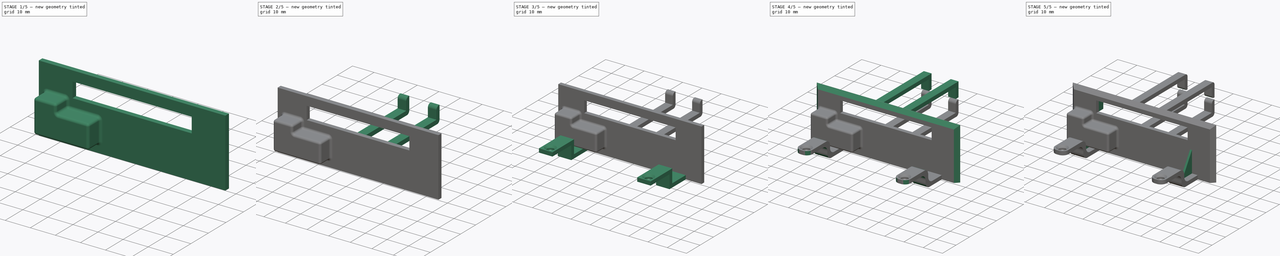
[diagram: build sequence overview — one tinted view per stage of 5, left to right]
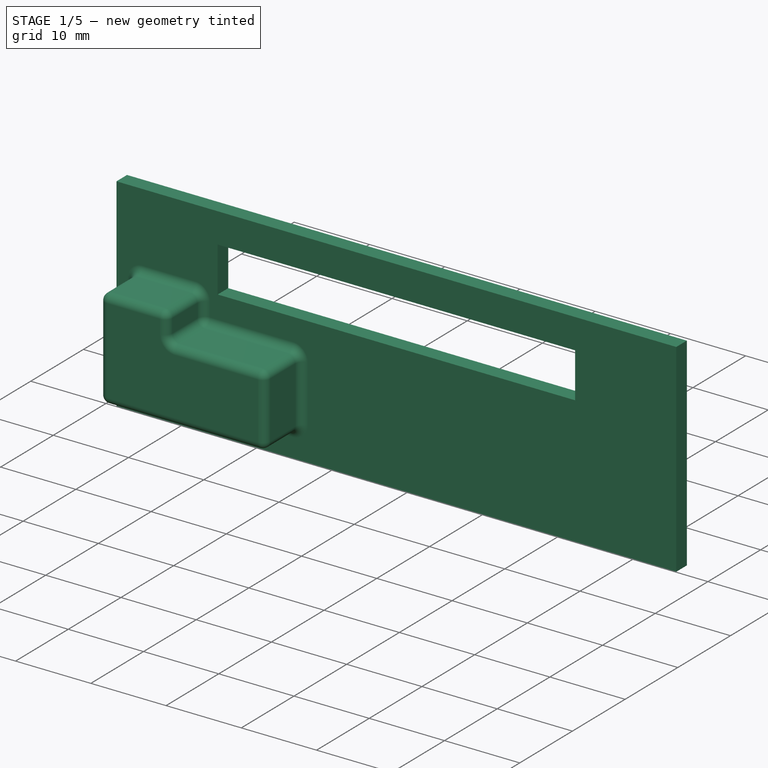
[diagram: stage 1 of 5 — iso view after this stage's code; geometry added in this stage tinted green]
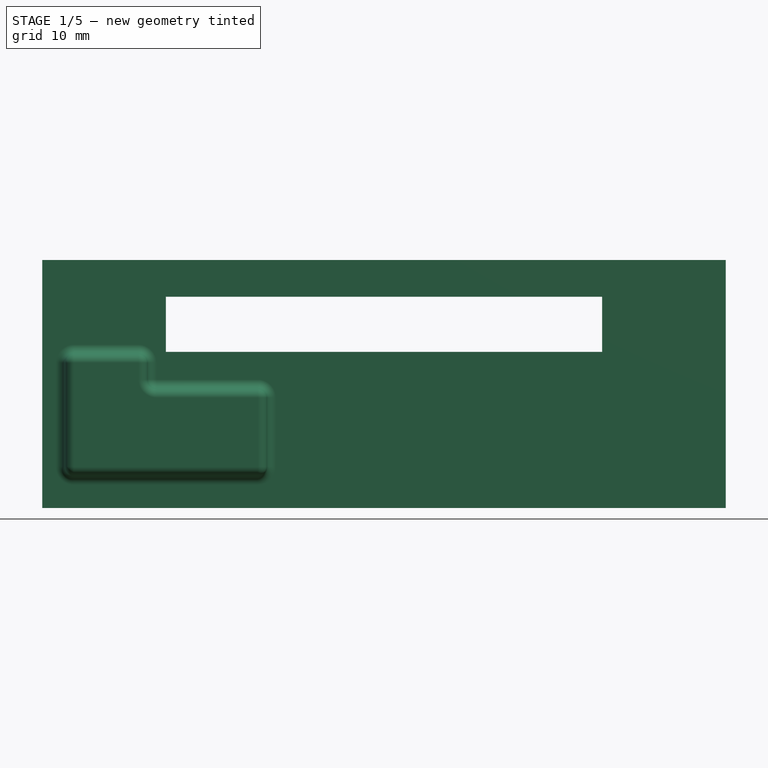
[diagram: stage 1 of 5 — front view after this stage's code; geometry added in this stage tinted green]
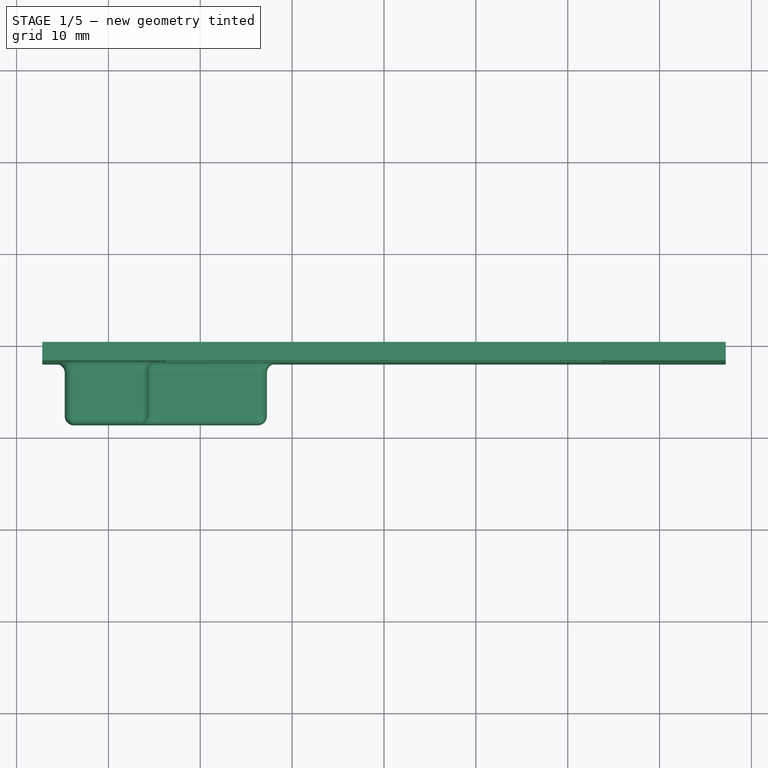
[diagram: stage 1 of 5 — top view after this stage's code; geometry added in this stage tinted green]
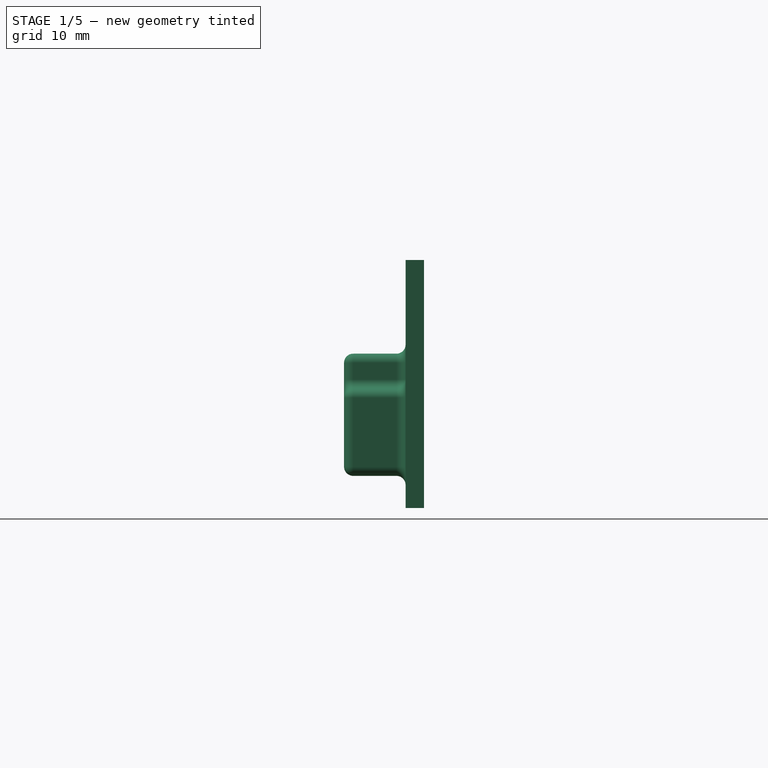
[diagram: stage 1 of 5 — right view after this stage's code; geometry added in this stage tinted green]
FCSTD DOCUMENT  (FreeCAD 0.20R29603 (Git))
Label: Encaixe (PLANTOWER)
License: All rights reserved
LicenseURL: http://en.wikipedia.org/wiki/All_rights_reserved
objects: Sketcher::SketchObject×15, PartDesign::Pad×13, PartDesign::Fillet×6, PartDesign::Pocket×2, PartDesign::Chamfer×2, PartDesign::Body×1
note: 62 computed .brp shape members not serialized (recipe doc carries the construction recipe); baked Part::Feature solids carry a one-line shape summary decoded from their .brp

FEATURE [Sketcher::SketchObject] Sketch
  FullyConstrained = true
  MapMode = 5
  Placement = pos=(0,0,0) rot=(1,0,0;1.5708rad)
  Support = -> [XZ_Plane]
  sketch-geometry (18):
    g0: LineSegment StartX=37.2 StartY=-13.5 StartZ=0 EndX=37.2 EndY=13.5 EndZ=0
    g1: LineSegment StartX=37.2 StartY=13.5 StartZ=0 EndX=-37.2 EndY=13.5 EndZ=0
    g2: LineSegment StartX=-37.2 StartY=13.5 StartZ=0 EndX=-37.2 EndY=-13.5 EndZ=0
    g3: LineSegment StartX=-37.2 StartY=-13.5 StartZ=0 EndX=37.2 EndY=-13.5 EndZ=0
    g4: GeomPoint X=0 Y=0 Z=0
    g5: LineSegment StartX=-23.75 StartY=-2.5 StartZ=0 EndX=-23.75 EndY=9.5 EndZ=0
    g6: LineSegment StartX=-23.75 StartY=9.5 StartZ=0 EndX=23.75 EndY=9.5 EndZ=0
    g7: LineSegment StartX=23.75 StartY=9.5 StartZ=0 EndX=23.75 EndY=-2.5 EndZ=0
    g8: LineSegment StartX=23.75 StartY=-2.5 StartZ=0 EndX=-23.75 EndY=-2.5 EndZ=0
    g9: GeomPoint X=0 Y=3.5 Z=0
    g10: LineSegment StartX=-23.75 StartY=-2.5 StartZ=0 EndX=23.75 EndY=-2.5 EndZ=0
    g11: LineSegment StartX=23.75 StartY=-2.5 StartZ=0 EndX=23.75 EndY=3.5 EndZ=0
    g12: LineSegment StartX=23.75 StartY=3.5 StartZ=0 EndX=-23.75 EndY=3.5 EndZ=0
    g13: LineSegment StartX=-23.75 StartY=3.5 StartZ=0 EndX=-23.75 EndY=-2.5 EndZ=0
    g14: LineSegment StartX=-23.75 StartY=9.5 StartZ=0 EndX=23.75 EndY=9.5 EndZ=0
    g15: LineSegment StartX=23.75 StartY=9.5 StartZ=0 EndX=23.75 EndY=3.5 EndZ=0
    g16: LineSegment StartX=23.75 StartY=3.5 StartZ=0 EndX=-23.75 EndY=3.5 EndZ=0
    g17: LineSegment StartX=-23.75 StartY=3.5 StartZ=0 EndX=-23.75 EndY=9.5 EndZ=0
  constraints (46):
    c: Coincident(g0,g1)
    c: Coincident(g1,g2)
    c: Coincident(g2,g3)
    c: Coincident(g3,g0)
    c: Horizontal(g1)
    c: Horizontal(g3)
    c: Vertical(g0)
    c: Vertical(g2)
    c: Symmetric(g1,g0,g4)
    c: Coincident(g4,g-1)
    c: DistanceX(g1,g1) = 74.4
    c: DistanceY(g2,g2) = 27
    c: Coincident(g5,g6)
    c: Coincident(g6,g7)
    c: Coincident(g7,g8)
    c: Coincident(g8,g5)
    c: Horizontal(g6)
    c: Horizontal(g8)
    c: Vertical(g5)
    c: Vertical(g7)
    c: Symmetric(g6,g5,g9)
    c: PointOnObject(g9,g-2)
    c: DistanceX(g6,g6) = 47.5
    c: DistanceY(g7,g7) = 12
    c: DistanceY(g0,g7) = 11
    c: Coincident(g10,g11)
    c: Coincident(g11,g12)
    c: Coincident(g12,g13)
    c: Coincident(g13,g10)
    c: Horizontal(g10)
    c: Horizontal(g12)
    c: Vertical(g11)
    c: Vertical(g13)
    c: Coincident(g10,g5)
    c: PointOnObject(g11,g7)
    c: PointOnObject(g9,g12)
    c: Coincident(g14,g15)
    c: Coincident(g15,g16)
    c: Coincident(g16,g17)
    c: Coincident(g17,g14)
    c: Horizontal(g14)
    c: Horizontal(g16)
    c: Vertical(g15)
    c: Vertical(g17)
    c: Coincident(g14,g5)
    c: Coincident(g15,g11)
FEATURE [PartDesign::Pad] Pad
  Direction = (0,-1,-2e-16)
  Length = 2
  Length2 = 10
  Placement = pos=(0,0,0) rot=(1,0,0;1.5708rad)
  Profile = -> Sketch
  ReferenceAxis = -> Sketch [N_Axis]
  Type = 0
FEATURE [Sketcher::SketchObject] Sketch001
  ExternalGeometry = -> [Pad]
  FullyConstrained = true
  MapMode = 5
  Placement = pos=(0,0,0) rot=(-1,0,0;1.5708rad)
  Support = -> [Pad]
  sketch-geometry (6):
    g0: LineSegment StartX=-33.75 StartY=-2.3 StartZ=0 EndX=-33.75 EndY=9 EndZ=0
    g1: LineSegment StartX=-33.75 StartY=9 StartZ=0 EndX=-13.75 EndY=9 EndZ=0
    g2: LineSegment StartX=-13.75 StartY=9 StartZ=0 EndX=-13.75 EndY=1.5 EndZ=0
    g3: LineSegment StartX=-13.75 StartY=1.5 StartZ=0 EndX=-26.75 EndY=1.5 EndZ=0
    g4: LineSegment StartX=-26.75 StartY=1.5 StartZ=0 EndX=-26.75 EndY=-2.3 EndZ=0
    g5: LineSegment StartX=-26.75 StartY=-2.3 StartZ=0 EndX=-33.75 EndY=-2.3 EndZ=0
  constraints (18):
    c: Coincident(g0,g1)
    c: Coincident(g1,g2)
    c: Horizontal(g1)
    c: Vertical(g0)
    c: Vertical(g2)
    c: DistanceY(g-3,g2) = 5
    c: DistanceX(g-3,g2) = 10
    c: Horizontal(g3)
    c: Coincident(g3,g4)
    c: Vertical(g4)
    c: Coincident(g4,g5)
    c: Horizontal(g5)
    c: Coincident(g3,g2)
    c: Coincident(g5,g0)
    c: DistanceX(g4,g-3) = 3
    c: DistanceY(g4,g4) = 3.8
    c: DistanceX(g1,g1) = 20
    c: DistanceY(g2,g2) = 7.5
FEATURE [PartDesign::Pocket] Pocket
  BaseFeature = -> Pad
  Direction = (0,-1,-2e-16)
  Length = 5
  Length2 = 5
  Placement = pos=(0,0,0) rot=(1,0,0;1.5708rad)
  Profile = -> Sketch001
  ReferenceAxis = -> Sketch001 [N_Axis]
  Type = 0
FEATURE [Sketcher::SketchObject] Sketch002
  ExternalGeometry = -> [Pocket]
  FullyConstrained = true
  MapMode = 5
  Placement = pos=(0,-2,0) rot=(1,0,0;1.5708rad)
  Support = -> [Pocket]
  sketch-geometry (12):
    g0: LineSegment StartX=-33.75 StartY=2.3 StartZ=0 EndX=-26.75 EndY=2.3 EndZ=0
    g1: LineSegment StartX=-26.75 StartY=2.3 StartZ=0 EndX=-26.75 EndY=-1.5 EndZ=0
    g2: LineSegment StartX=-26.75 StartY=-1.5 StartZ=0 EndX=-13.75 EndY=-1.5 EndZ=0
    g3: LineSegment StartX=-13.75 StartY=-1.5 StartZ=0 EndX=-13.75 EndY=-9 EndZ=0
    g4: LineSegment StartX=-13.75 StartY=-9 StartZ=0 EndX=-33.75 EndY=-9 EndZ=0
    g5: LineSegment StartX=-33.75 StartY=-9 StartZ=0 EndX=-33.75 EndY=2.3 EndZ=0
    g6: LineSegment StartX=-34.75 StartY=3.3 StartZ=0 EndX=-25.75 EndY=3.3 EndZ=0
    g7: LineSegment StartX=-25.75 StartY=3.3 StartZ=0 EndX=-25.75 EndY=-0.5 EndZ=0
    g8: LineSegment StartX=-25.75 StartY=-0.5 StartZ=0 EndX=-12.75 EndY=-0.5 EndZ=0
    g9: LineSegment StartX=-12.75 StartY=-0.5 StartZ=0 EndX=-12.75 EndY=-10 EndZ=0
    g10: LineSegment StartX=-12.75 StartY=-10 StartZ=0 EndX=-34.75 EndY=-10 EndZ=0
    g11: LineSegment StartX=-34.75 StartY=-10 StartZ=0 EndX=-34.75 EndY=3.3 EndZ=0
  constraints (30):
    c: Coincident(g-3,g0)
    c: Coincident(g0,g-3)
    c: Coincident(g0,g1)
    c: Coincident(g1,g-4)
    c: Coincident(g1,g2)
    c: Coincident(g2,g-4)
    c: Coincident(g2,g3)
    c: Coincident(g3,g-5)
    c: Coincident(g3,g4)
    c: Coincident(g4,g-5)
    c: Coincident(g4,g5)
    c: Coincident(g5,g0)
    c: Horizontal(g6)
    c: Coincident(g6,g7)
    c: Vertical(g7)
    c: Coincident(g7,g8)
    c: Horizontal(g8)
    c: Coincident(g8,g9)
    c: Vertical(g9)
    c: Coincident(g9,g10)
    c: Horizontal(g10)
    c: Coincident(g10,g11)
    c: Coincident(g11,g6)
    c: Vertical(g11)
    c: DistanceX(g0,g6) = 1
    c: DistanceY(g0,g6) = 1
    c: DistanceY(g2,g8) = 1
    c: DistanceX(g3,g9) = 1
    c: DistanceY(g10,g4) = 1
    c: DistanceX(g6,g0) = 1
FEATURE [PartDesign::Pad] Pad001
  BaseFeature = -> Pocket
  Direction = (0,-1,-2e-16)
  Length = 5.7
  Length2 = 10
  Placement = pos=(0,0,0) rot=(1,0,0;1.5708rad)
  Profile = -> Sketch002
  ReferenceAxis = -> Sketch002 [N_Axis]
  Type = 0
FEATURE [Sketcher::SketchObject] Sketch003
  ExternalGeometry = -> [Pad001]
  FullyConstrained = true
  MapMode = 5
  Placement = pos=(0,-7.7,0) rot=(1,0,0;1.5708rad)
  Support = -> [Pad001]
  sketch-geometry (6):
    g0: LineSegment StartX=-34.75 StartY=3.3 StartZ=0 EndX=-34.75 EndY=-10 EndZ=0
    g1: LineSegment StartX=-34.75 StartY=-10 StartZ=0 EndX=-12.75 EndY=-10 EndZ=0
    g2: LineSegment StartX=-12.75 StartY=-10 StartZ=0 EndX=-12.75 EndY=-0.5 EndZ=0
    g3: LineSegment StartX=-12.75 StartY=-0.5 StartZ=0 EndX=-25.75 EndY=-0.5 EndZ=0
    g4: LineSegment StartX=-25.75 StartY=-0.5 StartZ=0 EndX=-25.75 EndY=3.3 EndZ=0
    g5: LineSegment StartX=-25.75 StartY=3.3 StartZ=0 EndX=-34.75 EndY=3.3 EndZ=0
  constraints (12):
    c: Coincident(g-3,g0)
    c: Coincident(g0,g-5)
    c: Coincident(g0,g1)
    c: Coincident(g1,g-5)
    c: Coincident(g1,g2)
    c: Coincident(g2,g-4)
    c: Coincident(g2,g3)
    c: Coincident(g3,g-4)
    c: Coincident(g3,g4)
    c: Coincident(g4,g-3)
    c: Coincident(g4,g5)
    c: Coincident(g5,g0)
FEATURE [PartDesign::Pad] Pad002
  BaseFeature = -> Pad001
  Direction = (0,-1,-2e-16)
  Length = 1
  Length2 = 10
  Placement = pos=(0,0,0) rot=(1,0,0;1.5708rad)
  Profile = -> Sketch003
  ReferenceAxis = -> Sketch003 [N_Axis]
  Refine = true
  Type = 0
FEATURE [PartDesign::Fillet] Fillet
  Base = -> Pad002 [Face1,Face24,Face23,Face22,Face21,Face20,Face2,Face14,Face16,Face15,Face13,Face19,Face18,Face17]
  BaseFeature = -> Pad002
  Placement = pos=(0,0,0) rot=(1,0,0;1.5708rad)
  Radius = 1
  SupportTransform = false
  UseAllEdges = false
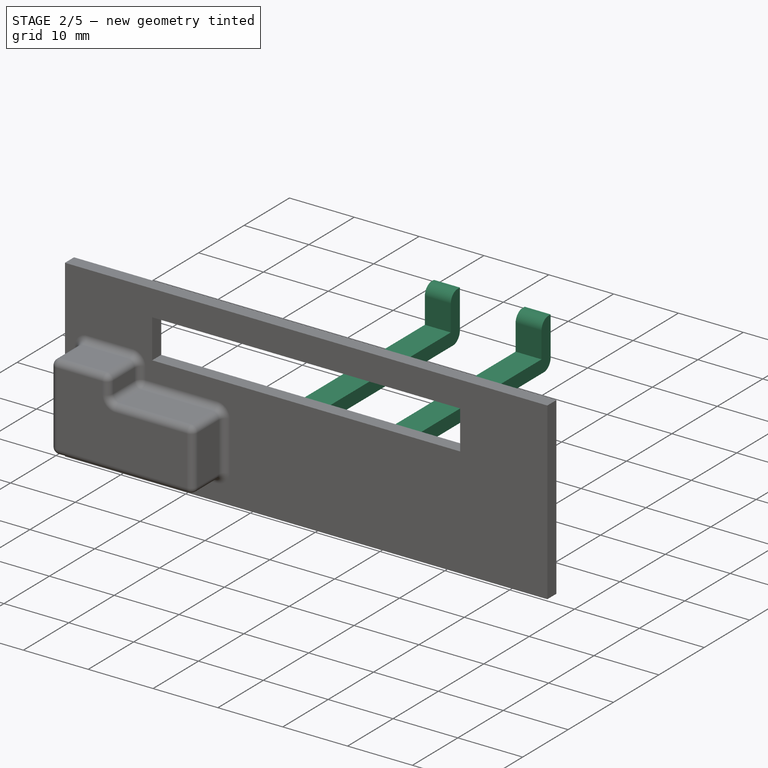
[diagram: stage 2 of 5 — iso view after this stage's code; geometry added in this stage tinted green]
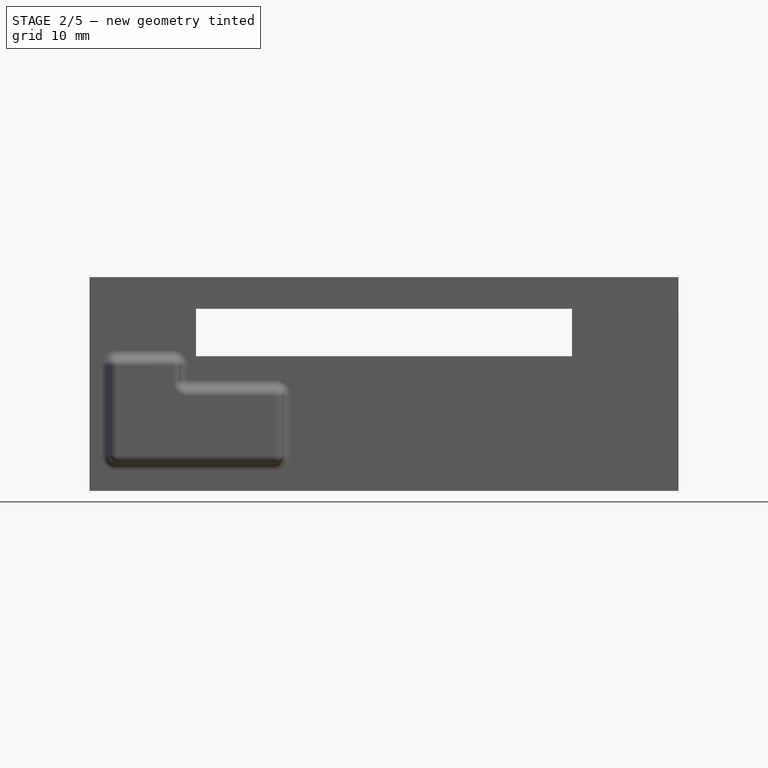
[diagram: stage 2 of 5 — front view after this stage's code; geometry added in this stage tinted green]
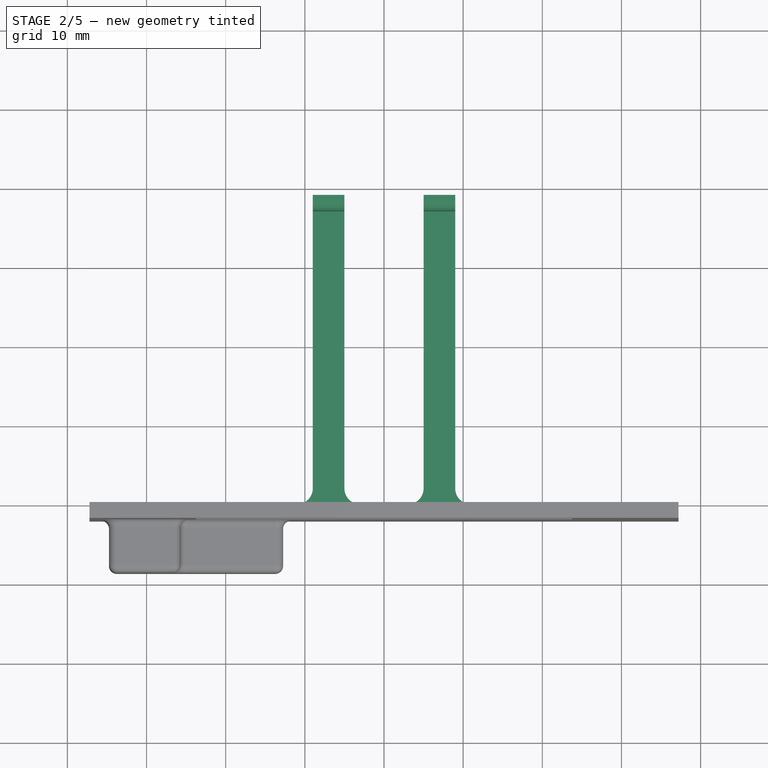
[diagram: stage 2 of 5 — top view after this stage's code; geometry added in this stage tinted green]
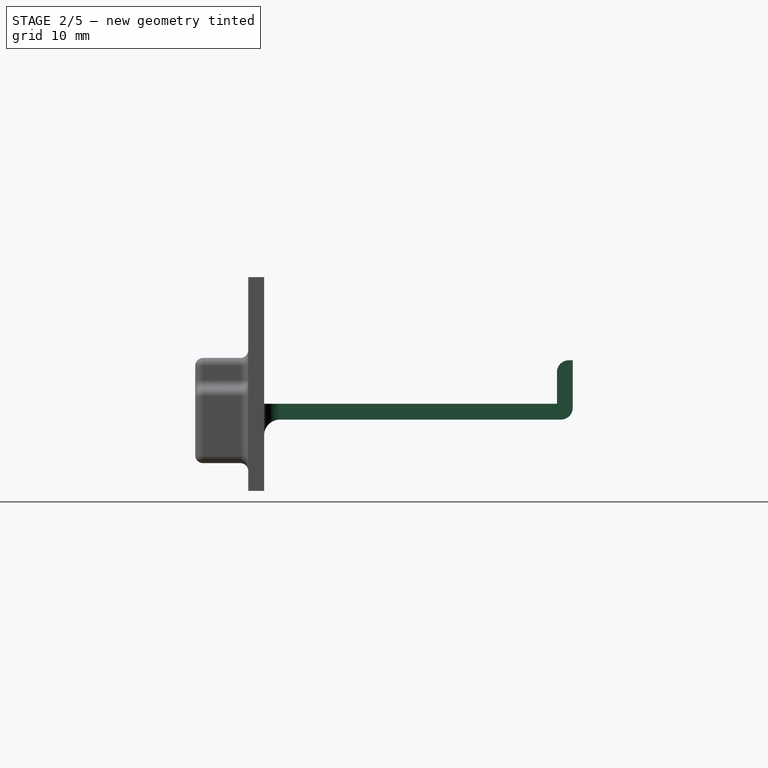
[diagram: stage 2 of 5 — right view after this stage's code; geometry added in this stage tinted green]
FEATURE [Sketcher::SketchObject] Sketch004
  ExternalGeometry = -> [Fillet]
  FullyConstrained = true
  MapMode = 5
  Placement = pos=(0,0,0) rot=(-1,0,0;1.5708rad)
  Support = -> [Fillet]
  sketch-geometry (9):
    g0: LineSegment StartX=-9 StartY=2.5 StartZ=0 EndX=-5 EndY=2.5 EndZ=0
    g1: LineSegment StartX=-5 StartY=2.5 StartZ=0 EndX=-5 EndY=4.5 EndZ=0
    g2: LineSegment StartX=-5 StartY=4.5 StartZ=0 EndX=-9 EndY=4.5 EndZ=0
    g3: LineSegment StartX=-9 StartY=4.5 StartZ=0 EndX=-9 EndY=2.5 EndZ=0
    g4: LineSegment StartX=5 StartY=2.5 StartZ=0 EndX=9 EndY=2.5 EndZ=0
    g5: LineSegment StartX=9 StartY=2.5 StartZ=0 EndX=9 EndY=4.5 EndZ=0
    g6: LineSegment StartX=9 StartY=4.5 StartZ=0 EndX=5 EndY=4.5 EndZ=0
    g7: LineSegment StartX=5 StartY=4.5 StartZ=0 EndX=5 EndY=2.5 EndZ=0
    g8: GeomPoint X=0 Y=2.5 Z=0
  constraints (25):
    c: Coincident(g0,g1)
    c: Coincident(g1,g2)
    c: Coincident(g2,g3)
    c: Coincident(g3,g0)
    c: Horizontal(g0)
    c: Horizontal(g2)
    c: Vertical(g1)
    c: Vertical(g3)
    c: Coincident(g4,g5)
    c: Coincident(g5,g6)
    c: Coincident(g6,g7)
    c: Coincident(g7,g4)
    c: Horizontal(g4)
    c: Horizontal(g6)
    c: Vertical(g5)
    c: Vertical(g7)
    c: Equal(g6,g2)
    c: Equal(g5,g1)
    c: DistanceY(g1,g1) = 2
    c: DistanceX(g2,g2) = 4
    c: DistanceX(g1,g6) = 10
    c: PointOnObject(g0,g4)
    c: DistanceY(g-4,g4) = 12
    c: PointOnObject(g8,g-2)
    c: Symmetric(g0,g4,g8)
FEATURE [PartDesign::Pad] Pad003
  BaseFeature = -> Fillet
  Direction = (0,1,2e-16)
  Length = 37
  Length2 = 10
  Placement = pos=(0,0,0) rot=(1,0,0;1.5708rad)
  Profile = -> Sketch004
  ReferenceAxis = -> Sketch004 [N_Axis]
  Type = 0
FEATURE [PartDesign::Fillet] Fillet001
  Base = -> Pad003 [Edge123,Edge122,Edge121,Edge127,Edge125,Edge126]
  BaseFeature = -> Pad003
  Placement = pos=(0,0,0) rot=(1,0,0;1.5708rad)
  Radius = 2
  SupportTransform = false
  UseAllEdges = false
FEATURE [Sketcher::SketchObject] Sketch005
  ExternalGeometry = -> [Fillet001]
  FullyConstrained = true
  MapMode = 5
  Placement = pos=(0,-6e-16,-2.5) rot=(0,0,1;3.14159rad)
  Support = -> [Fillet001]
  sketch-geometry (8):
    g0: LineSegment StartX=-9 StartY=-37 StartZ=0 EndX=-5 EndY=-37 EndZ=0
    g1: LineSegment StartX=-5 StartY=-37 StartZ=0 EndX=-5 EndY=-39 EndZ=0
    g2: LineSegment StartX=-5 StartY=-39 StartZ=0 EndX=-9 EndY=-39 EndZ=0
    g3: LineSegment StartX=-9 StartY=-39 StartZ=0 EndX=-9 EndY=-37 EndZ=0
    g4: LineSegment StartX=5 StartY=-37 StartZ=0 EndX=9 EndY=-37 EndZ=0
    g5: LineSegment StartX=9 StartY=-37 StartZ=0 EndX=9 EndY=-39 EndZ=0
    g6: LineSegment StartX=9 StartY=-39 StartZ=0 EndX=5 EndY=-39 EndZ=0
    g7: LineSegment StartX=5 StartY=-39 StartZ=0 EndX=5 EndY=-37 EndZ=0
  constraints (20):
    c: Coincident(g0,g1)
    c: Coincident(g1,g2)
    c: Coincident(g2,g3)
    c: Coincident(g3,g0)
    c: Horizontal(g2)
    c: Vertical(g1)
    c: Vertical(g3)
    c: Coincident(g0,g-4)
    c: Coincident(g4,g5)
    c: Coincident(g5,g6)
    c: Coincident(g6,g7)
    c: Coincident(g7,g4)
    c: Horizontal(g6)
    c: Vertical(g5)
    c: Vertical(g7)
    c: Coincident(g4,g-3)
    c: Coincident(g4,g-3)
    c: Coincident(g0,g-4)
    c: Equal(g1,g5)
    c: DistanceY(g1,g1) = 2
FEATURE [PartDesign::Pad] Pad004
  BaseFeature = -> Fillet001
  Direction = (0,2e-16,1)
  Length = 5.5
  Length2 = 2
  Placement = pos=(0,0,0) rot=(1,0,0;1.5708rad)
  Profile = -> Sketch005
  ReferenceAxis = -> Sketch005 [N_Axis]
  Refine = true
  Type = 4
FEATURE [PartDesign::Fillet] Fillet002
  Base = -> Pad004 [Edge88,Edge127,Edge184,Edge213]
  BaseFeature = -> Pad004
  Placement = pos=(0,0,0) rot=(1,0,0;1.5708rad)
  Radius = 1.5
  SupportTransform = false
  UseAllEdges = false
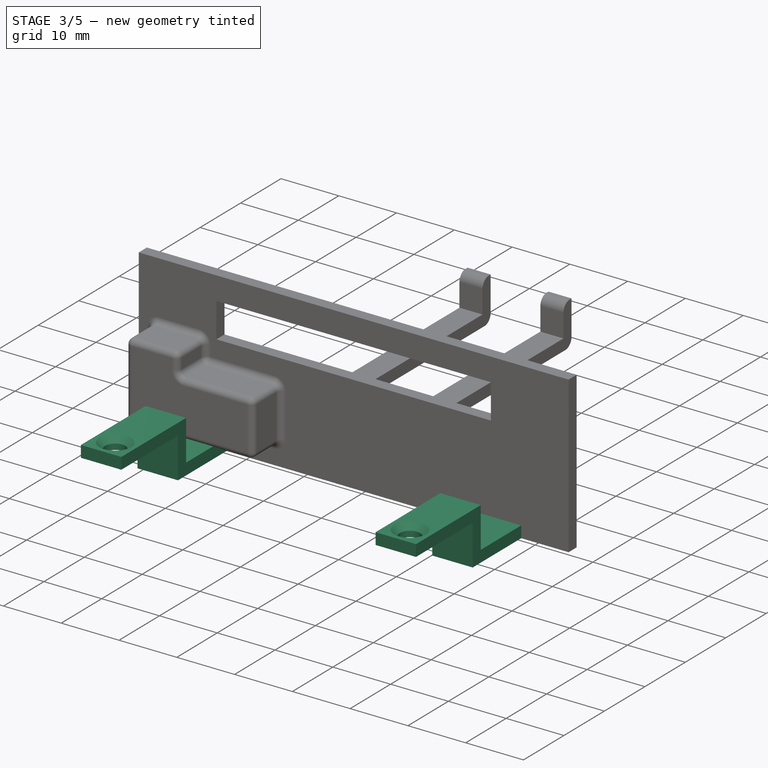
[diagram: stage 3 of 5 — iso view after this stage's code; geometry added in this stage tinted green]
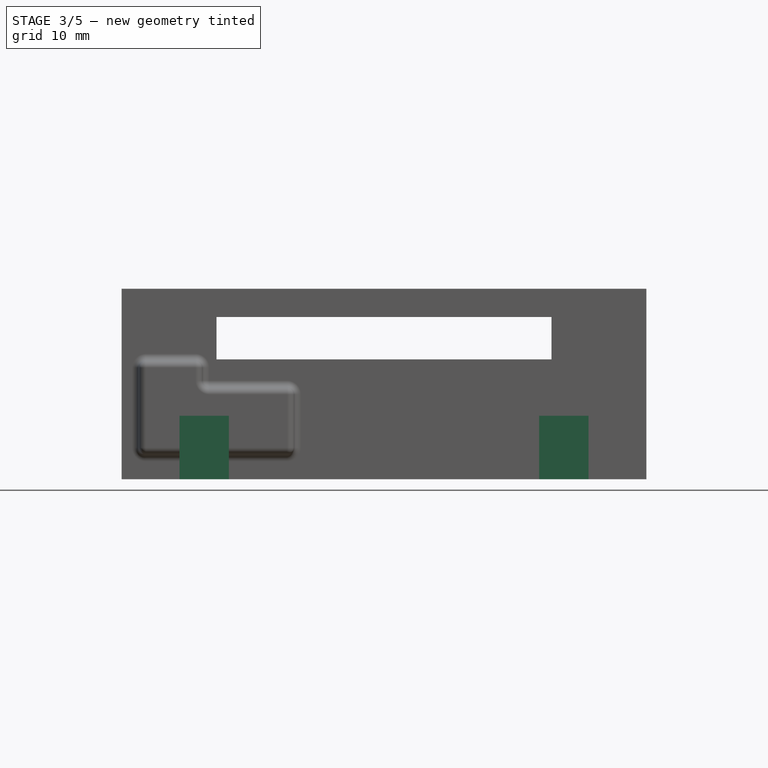
[diagram: stage 3 of 5 — front view after this stage's code; geometry added in this stage tinted green]
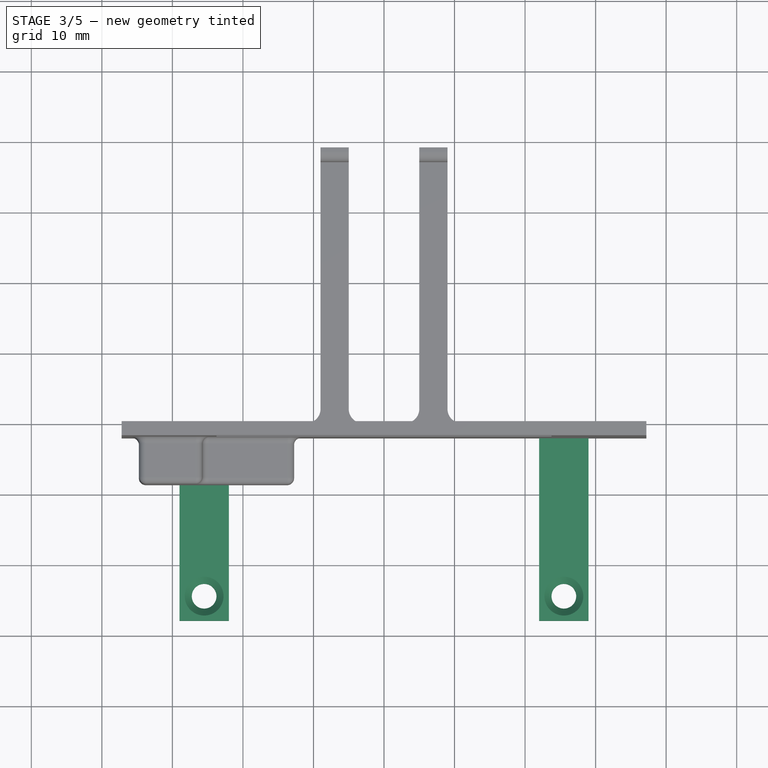
[diagram: stage 3 of 5 — top view after this stage's code; geometry added in this stage tinted green]
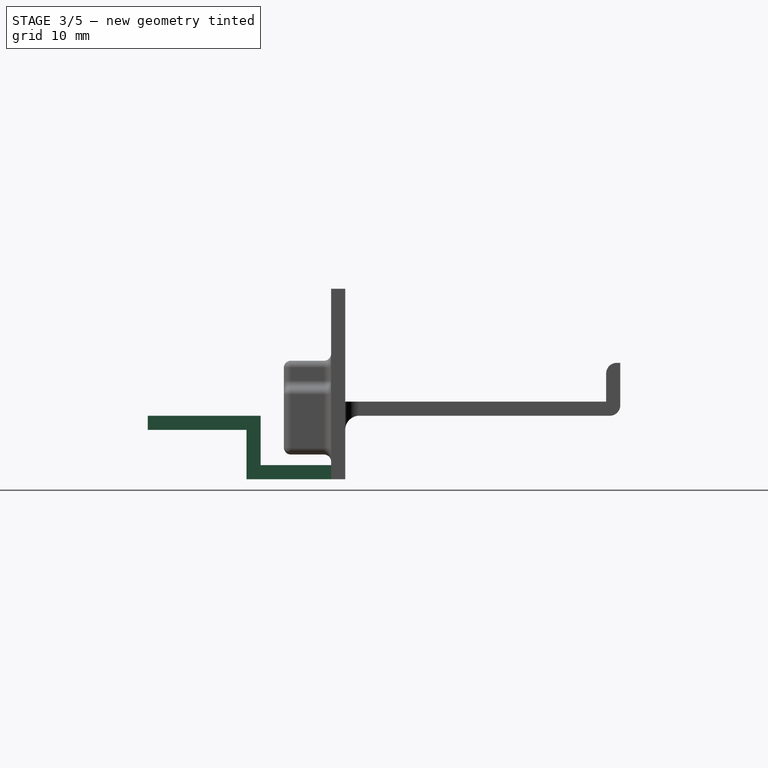
[diagram: stage 3 of 5 — right view after this stage's code; geometry added in this stage tinted green]
FEATURE [Sketcher::SketchObject] Sketch006
  ExternalGeometry = -> [Fillet002]
  FullyConstrained = true
  MapMode = 5
  Placement = pos=(0,-2,2e-16) rot=(1,0,0;1.5708rad)
  Support = -> [Fillet002]
  sketch-geometry (11):
    g0: LineSegment StartX=-29 StartY=-11.5 StartZ=0 EndX=-29 EndY=-13.5 EndZ=0
    g1: LineSegment StartX=-29 StartY=-13.5 StartZ=0 EndX=-22 EndY=-13.5 EndZ=0
    g2: LineSegment StartX=-22 StartY=-13.5 StartZ=0 EndX=-22 EndY=-11.5 EndZ=0
    g3: LineSegment StartX=-22 StartY=-11.5 StartZ=0 EndX=-29 EndY=-11.5 EndZ=0
    g4: GeomPoint X=-25.5 Y=-12.5 Z=0
    g5: LineSegment StartX=22 StartY=-11.5 StartZ=0 EndX=22 EndY=-13.5 EndZ=0
    g6: LineSegment StartX=22 StartY=-13.5 StartZ=0 EndX=29 EndY=-13.5 EndZ=0
    g7: LineSegment StartX=29 StartY=-13.5 StartZ=0 EndX=29 EndY=-11.5 EndZ=0
    g8: LineSegment StartX=29 StartY=-11.5 StartZ=0 EndX=22 EndY=-11.5 EndZ=0
    g9: GeomPoint X=25.5 Y=-12.5 Z=0
    g10: GeomPoint X=1e-16 Y=-13.5 Z=0
  constraints (27):
    c: Coincident(g0,g1)
    c: Coincident(g1,g2)
    c: Coincident(g2,g3)
    c: Coincident(g3,g0)
    c: Horizontal(g1)
    c: Horizontal(g3)
    c: Vertical(g0)
    c: Vertical(g2)
    c: Symmetric(g1,g0,g4)
    c: Coincident(g5,g6)
    c: Coincident(g6,g7)
    c: Coincident(g7,g8)
    c: Coincident(g8,g5)
    c: Horizontal(g6)
    c: Horizontal(g8)
    c: Vertical(g5)
    c: Vertical(g7)
    c: Symmetric(g6,g5,g9)
    c: Equal(g2,g7)
    c: Equal(g8,g3)
    c: DistanceX(g3,g3) = 7
    c: DistanceY(g2,g2) = 2
    c: PointOnObject(g5,g-3)
    c: PointOnObject(g1,g-3)
    c: PointOnObject(g10,g-2)
    c: Symmetric(g1,g5,g10)
    c: DistanceX(g4,g9) = 51
FEATURE [PartDesign::Pad] Pad005
  BaseFeature = -> Fillet002
  Direction = (0,-1,2e-16)
  Length = 10
  Length2 = 10
  Placement = pos=(0,0,0) rot=(1,0,0;1.5708rad)
  Profile = -> Sketch006
  ReferenceAxis = -> Sketch006 [N_Axis]
  Type = 0
FEATURE [Sketcher::SketchObject] Sketch007
  ExternalGeometry = -> [Pad005]
  FullyConstrained = true
  MapMode = 5
  Placement = pos=(0,-3.8e-15,-11.5) rot=(0,0,1;3.14159rad)
  Support = -> [Pad005]
  sketch-geometry (8):
    g0: LineSegment StartX=-29 StartY=12 StartZ=0 EndX=-22 EndY=12 EndZ=0
    g1: LineSegment StartX=-22 StartY=12 StartZ=0 EndX=-22 EndY=14 EndZ=0
    g2: LineSegment StartX=-22 StartY=14 StartZ=0 EndX=-29 EndY=14 EndZ=0
    g3: LineSegment StartX=-29 StartY=14 StartZ=0 EndX=-29 EndY=12 EndZ=0
    g4: LineSegment StartX=22 StartY=12 StartZ=0 EndX=29 EndY=12 EndZ=0
    g5: LineSegment StartX=29 StartY=12 StartZ=0 EndX=29 EndY=14 EndZ=0
    g6: LineSegment StartX=29 StartY=14 StartZ=0 EndX=22 EndY=14 EndZ=0
    g7: LineSegment StartX=22 StartY=14 StartZ=0 EndX=22 EndY=12 EndZ=0
  constraints (20):
    c: Coincident(g0,g1)
    c: Coincident(g1,g2)
    c: Coincident(g2,g3)
    c: Coincident(g3,g0)
    c: Horizontal(g2)
    c: Vertical(g1)
    c: Vertical(g3)
    c: Coincident(g0,g-3)
    c: Coincident(g4,g5)
    c: Coincident(g5,g6)
    c: Coincident(g6,g7)
    c: Coincident(g7,g4)
    c: Horizontal(g6)
    c: Vertical(g5)
    c: Vertical(g7)
    c: Coincident(g4,g-4)
    c: Coincident(g4,g-4)
    c: Coincident(g0,g-3)
    c: Equal(g1,g7)
    c: DistanceY(g7,g7) = 2
FEATURE [PartDesign::Pad] Pad006
  BaseFeature = -> Pad005
  Direction = (0,3e-16,1)
  Length = 5
  Length2 = 2
  Placement = pos=(0,0,0) rot=(1,0,0;1.5708rad)
  Profile = -> Sketch007
  ReferenceAxis = -> Sketch007 [N_Axis]
  Refine = true
  Type = 4
FEATURE [Sketcher::SketchObject] Sketch008
  ExternalGeometry = -> [Pad006]
  FullyConstrained = true
  MapMode = 5
  Placement = pos=(0,-6.5e-15,-6.5) rot=(0,0,1;3.14159rad)
  Support = -> [Pad006]
  sketch-geometry (8):
    g0: LineSegment StartX=-29 StartY=12 StartZ=0 EndX=-22 EndY=12 EndZ=0
    g1: LineSegment StartX=-22 StartY=12 StartZ=0 EndX=-22 EndY=28 EndZ=0
    g2: LineSegment StartX=-22 StartY=28 StartZ=0 EndX=-29 EndY=28 EndZ=0
    g3: LineSegment StartX=-29 StartY=28 StartZ=0 EndX=-29 EndY=12 EndZ=0
    g4: LineSegment StartX=22 StartY=12 StartZ=0 EndX=29 EndY=12 EndZ=0
    g5: LineSegment StartX=29 StartY=12 StartZ=0 EndX=29 EndY=28 EndZ=0
    g6: LineSegment StartX=29 StartY=28 StartZ=0 EndX=22 EndY=28 EndZ=0
    g7: LineSegment StartX=22 StartY=28 StartZ=0 EndX=22 EndY=12 EndZ=0
  constraints (20):
    c: Coincident(g0,g1)
    c: Coincident(g1,g2)
    c: Coincident(g2,g3)
    c: Coincident(g3,g0)
    c: Horizontal(g2)
    c: Vertical(g1)
    c: Vertical(g3)
    c: Coincident(g0,g-3)
    c: Coincident(g4,g5)
    c: Coincident(g5,g6)
    c: Coincident(g6,g7)
    c: Coincident(g7,g4)
    c: Horizontal(g6)
    c: Vertical(g5)
    c: Vertical(g7)
    c: Coincident(g4,g-4)
    c: Coincident(g4,g-4)
    c: Coincident(g0,g-3)
    c: DistanceY(g-5,g2) = 26
    c: Equal(g3,g5)
FEATURE [PartDesign::Pad] Pad007
  BaseFeature = -> Pad006
  Direction = (0,1e-15,1)
  Length = 2
  Length2 = 10
  Placement = pos=(0,0,0) rot=(1,0,0;1.5708rad)
  Profile = -> Sketch008
  ReferenceAxis = -> Sketch008 [N_Axis]
  Refine = true
  Type = 0
FEATURE [Sketcher::SketchObject] Sketch009
  ExternalGeometry = -> [Pad007]
  FullyConstrained = true
  MapMode = 5
  Placement = pos=(0,-5e-15,-4.5) rot=(0,0,1;3.14159rad)
  Support = -> [Pad007]
  sketch-geometry (4):
    g0: Circle CenterX=-25.5 CenterY=24.5 CenterZ=0 NormalX=0 NormalY=0 NormalZ=1 AngleXU=0 Radius=1.75
    g1: Circle CenterX=25.5 CenterY=24.5 CenterZ=0 NormalX=0 NormalY=0 NormalZ=1 AngleXU=0 Radius=1.75
    g2: LineSegment StartX=-25.5 StartY=24.5 StartZ=0 EndX=25.5 EndY=24.5 EndZ=0
    g3: GeomPoint X=0 Y=24.5 Z=0
  constraints (9):
    c: Equal(g1,g0)
    c: Diameter(g1) = 3.5
    c: DistanceX(g0,g1) = 51
    c: Coincident(g2,g0)
    c: Coincident(g2,g1)
    c: Horizontal(g2)
    c: PointOnObject(g3,g-2)
    c: DistanceY(g-3,g0) = 22.5
    c: Symmetric(g0,g1,g3)
FEATURE [PartDesign::Pocket] Pocket001
  BaseFeature = -> Pad007
  Direction = (0,-1.1e-15,-1)
  Length = 5
  Length2 = 5
  Placement = pos=(0,0,0) rot=(1,0,0;1.5708rad)
  Profile = -> Sketch009
  ReferenceAxis = -> Sketch009 [N_Axis]
  Type = 0
FEATURE [PartDesign::Chamfer] Chamfer
  Angle = 45
  Base = -> Pocket001 [Edge226,Edge221]
  BaseFeature = -> Pocket001
  ChamferType = 0
  FlipDirection = false
  Placement = pos=(0,0,0) rot=(1,0,0;1.5708rad)
  Size = 1
  Size2 = 1
  SupportTransform = false
  UseAllEdges = false
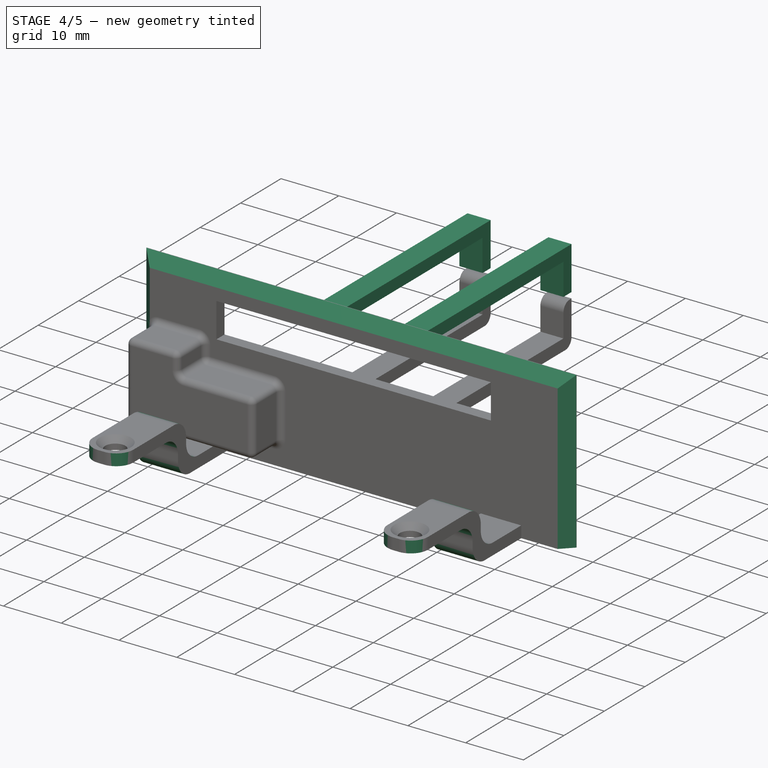
[diagram: stage 4 of 5 — iso view after this stage's code; geometry added in this stage tinted green]
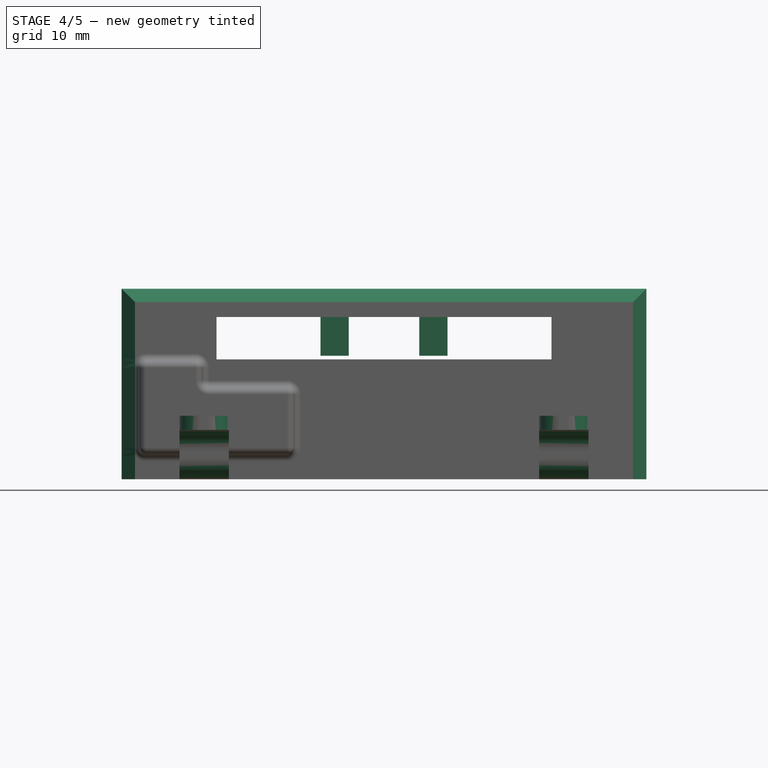
[diagram: stage 4 of 5 — front view after this stage's code; geometry added in this stage tinted green]
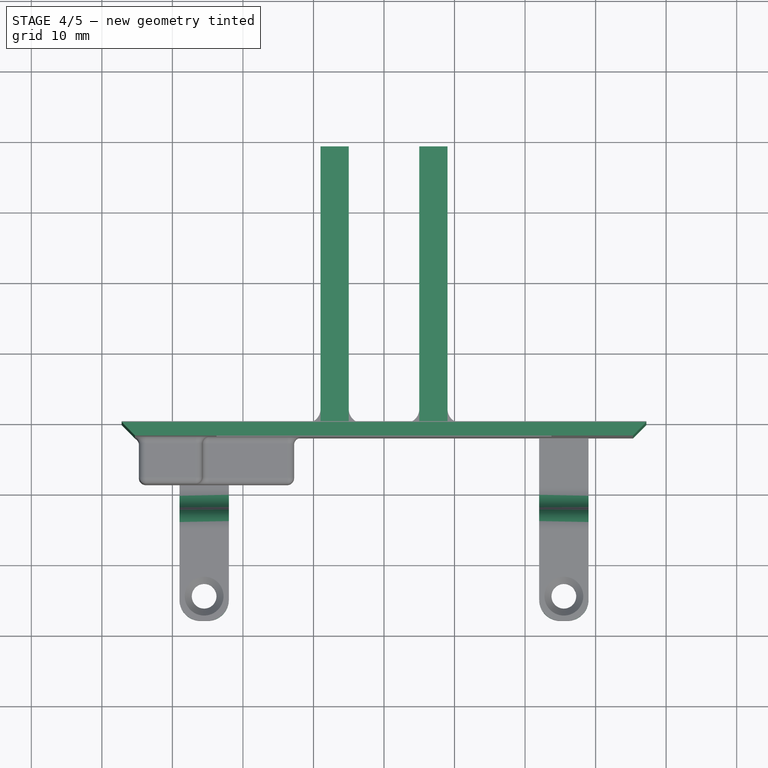
[diagram: stage 4 of 5 — top view after this stage's code; geometry added in this stage tinted green]
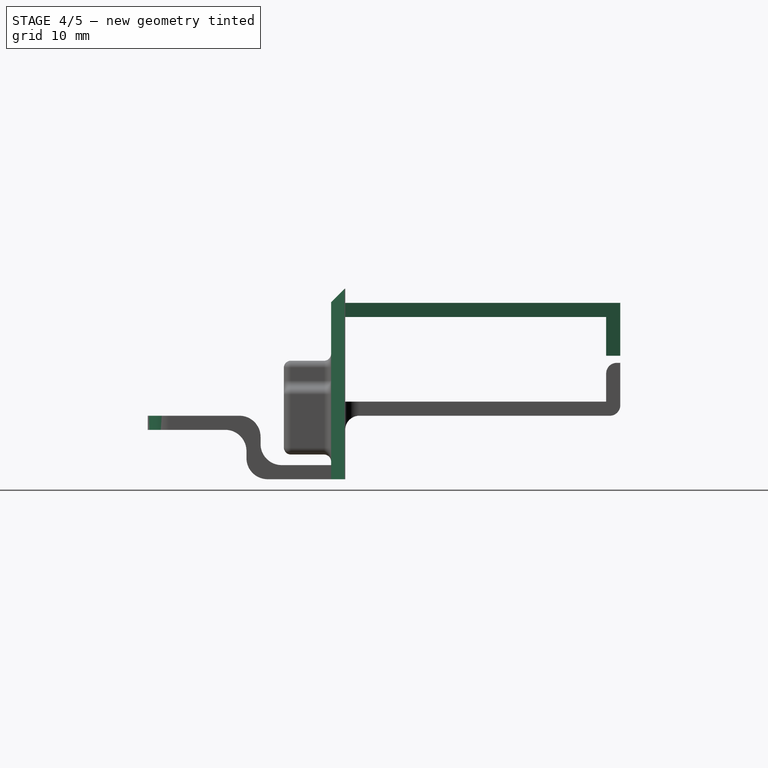
[diagram: stage 4 of 5 — right view after this stage's code; geometry added in this stage tinted green]
FEATURE [PartDesign::Fillet] Fillet003
  Base = -> Chamfer [Edge14,Edge22,Edge90,Edge97,Edge2,Edge58,Edge8,Edge31,Edge171,Edge94,Edge34,Edge100]
  BaseFeature = -> Chamfer
  Placement = pos=(0,0,0) rot=(1,0,0;1.5708rad)
  Radius = 3
  SupportTransform = false
  UseAllEdges = false
FEATURE [PartDesign::Chamfer] Chamfer001
  Angle = 45
  Base = -> Fillet003 [Edge50,Edge51,Edge49]
  BaseFeature = -> Fillet003
  ChamferType = 0
  FlipDirection = false
  Placement = pos=(0,0,0) rot=(1,0,0;1.5708rad)
  Size = 1.9
  Size2 = 1
  SupportTransform = false
  UseAllEdges = false
FEATURE [Sketcher::SketchObject] Sketch010
  ExternalGeometry = -> [Chamfer001]
  FullyConstrained = true
  MapMode = 5
  Placement = pos=(0,0,0) rot=(-1,0,0;1.5708rad)
  Support = -> [Chamfer001]
  sketch-geometry (8):
    g0: LineSegment StartX=-9 StartY=-9.5 StartZ=0 EndX=-5 EndY=-9.5 EndZ=0
    g1: LineSegment StartX=-5 StartY=-9.5 StartZ=0 EndX=-5 EndY=-11.5 EndZ=0
    g2: LineSegment StartX=-5 StartY=-11.5 StartZ=0 EndX=-9 EndY=-11.5 EndZ=0
    g3: LineSegment StartX=-9 StartY=-11.5 StartZ=0 EndX=-9 EndY=-9.5 EndZ=0
    g4: LineSegment StartX=5 StartY=-9.5 StartZ=0 EndX=9 EndY=-9.5 EndZ=0
    g5: LineSegment StartX=9 StartY=-9.5 StartZ=0 EndX=9 EndY=-11.5 EndZ=0
    g6: LineSegment StartX=9 StartY=-11.5 StartZ=0 EndX=5 EndY=-11.5 EndZ=0
    g7: LineSegment StartX=5 StartY=-11.5 StartZ=0 EndX=5 EndY=-9.5 EndZ=0
  constraints (24):
    c: Coincident(g0,g1)
    c: Coincident(g1,g2)
    c: Coincident(g2,g3)
    c: Coincident(g3,g0)
    c: Horizontal(g0)
    c: Horizontal(g2)
    c: Vertical(g1)
    c: Vertical(g3)
    c: Coincident(g4,g5)
    c: Coincident(g5,g6)
    c: Coincident(g6,g7)
    c: Coincident(g7,g4)
    c: Horizontal(g4)
    c: Horizontal(g6)
    c: Vertical(g5)
    c: Vertical(g7)
    c: Equal(g1,g5)
    c: DistanceY(g1,g1) = 2
    c: DistanceX(g0,g0) = 4
    c: Equal(g0,g4)
    c: PointOnObject(g0,g-5)
    c: PointOnObject(g4,g-5)
    c: PointOnObject(g-3,g1)
    c: PointOnObject(g-4,g7)
FEATURE [PartDesign::Pad] Pad008
  BaseFeature = -> Chamfer001
  Direction = (0,1,-4e-16)
  Length = 10
  Length2 = 10
  Placement = pos=(0,0,0) rot=(1,0,0;1.5708rad)
  Profile = -> Sketch010
  ReferenceAxis = -> Sketch010 [N_Axis]
  Type = 3
  UpToFace = -> Chamfer001 [Face89]
FEATURE [Sketcher::SketchObject] Sketch011
  ExternalGeometry = -> [Pad008]
  FullyConstrained = true
  MapMode = 5
  Placement = pos=(0,37,-3.29e-14) rot=(-1,0,0;1.5708rad)
  Support = -> [Pad008]
  sketch-geometry (9):
    g0: LineSegment StartX=-9 StartY=4.5 StartZ=0 EndX=-9 EndY=-3 EndZ=0
    g1: LineSegment StartX=-9 StartY=-11.5 StartZ=0 EndX=-5 EndY=-11.5 EndZ=0
    g2: LineSegment StartX=-5 StartY=-11.5 StartZ=0 EndX=-5 EndY=-4 EndZ=0
    g3: LineSegment StartX=-5 StartY=-4 StartZ=0 EndX=-9 EndY=-4 EndZ=0
    g4: LineSegment StartX=-9 StartY=-4 StartZ=0 EndX=-9 EndY=-11.5 EndZ=0
    g5: LineSegment StartX=5 StartY=-11.5 StartZ=0 EndX=9 EndY=-11.5 EndZ=0
    g6: LineSegment StartX=9 StartY=-11.5 StartZ=0 EndX=9 EndY=-4 EndZ=0
    g7: LineSegment StartX=9 StartY=-4 StartZ=0 EndX=5 EndY=-4 EndZ=0
    g8: LineSegment StartX=5 StartY=-4 StartZ=0 EndX=5 EndY=-11.5 EndZ=0
  constraints (22):
    c: Coincident(g0,g-5)
    c: Coincident(g0,g-6)
    c: Coincident(g1,g2)
    c: Coincident(g2,g3)
    c: Coincident(g3,g4)
    c: Coincident(g4,g1)
    c: Horizontal(g3)
    c: Vertical(g2)
    c: Vertical(g4)
    c: Coincident(g1,g-3)
    c: Coincident(g5,g6)
    c: Coincident(g6,g7)
    c: Coincident(g7,g8)
    c: Coincident(g8,g5)
    c: Horizontal(g7)
    c: Vertical(g6)
    c: Vertical(g8)
    c: Coincident(g5,g-4)
    c: Equal(g8,g4)
    c: Coincident(g1,g-3)
    c: Coincident(g5,g-4)
    c: Equal(g0,g4)
FEATURE [PartDesign::Pad] Pad009
  BaseFeature = -> Pad008
  Direction = (0,1,-7e-16)
  Length = 2
  Length2 = 10
  Placement = pos=(0,0,0) rot=(1,0,0;1.5708rad)
  Profile = -> Sketch011
  ReferenceAxis = -> Sketch011 [N_Axis]
  Refine = true
  Type = 0
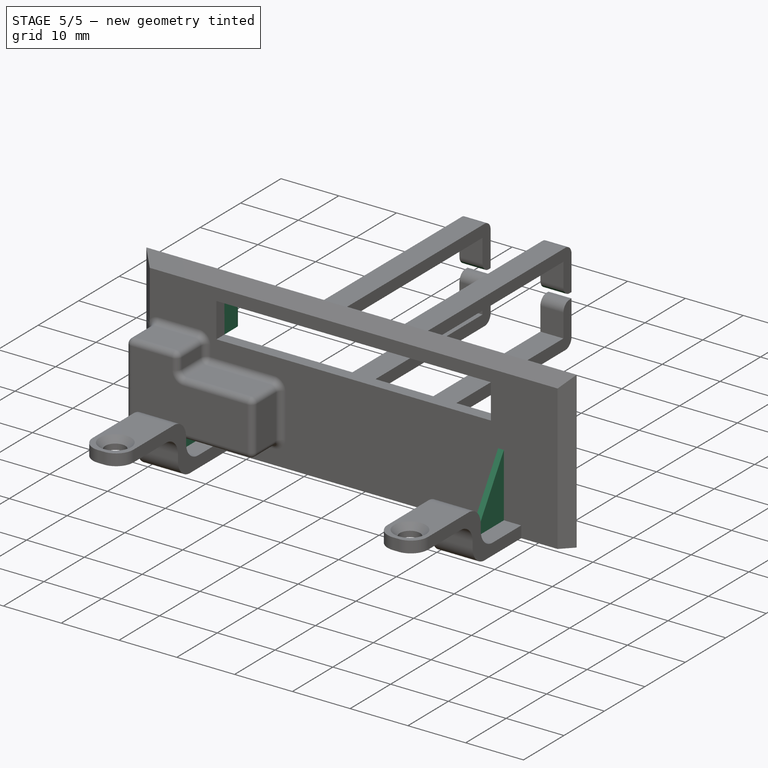
[diagram: stage 5 of 5 — iso view after this stage's code; geometry added in this stage tinted green]
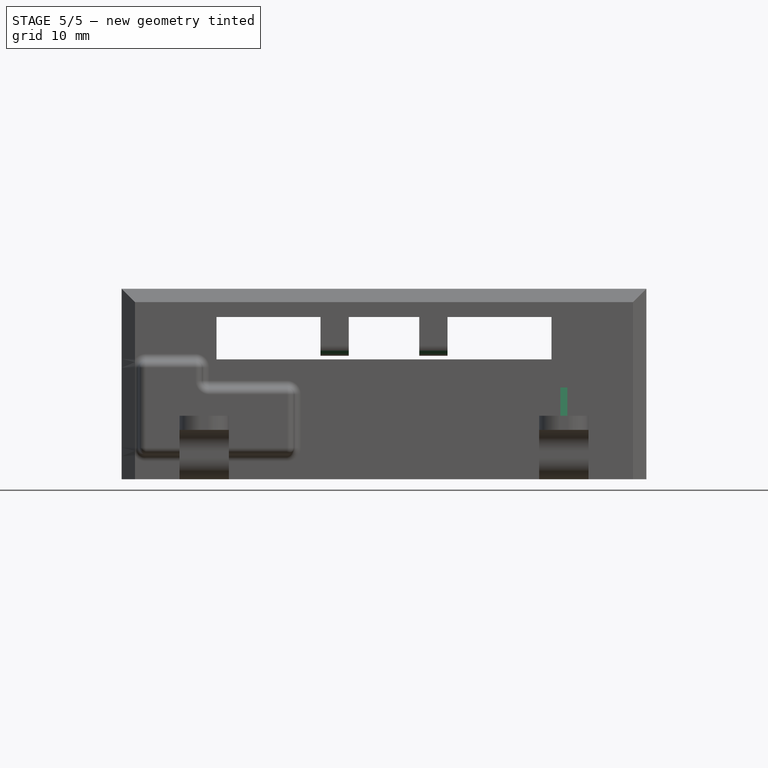
[diagram: stage 5 of 5 — front view after this stage's code; geometry added in this stage tinted green]
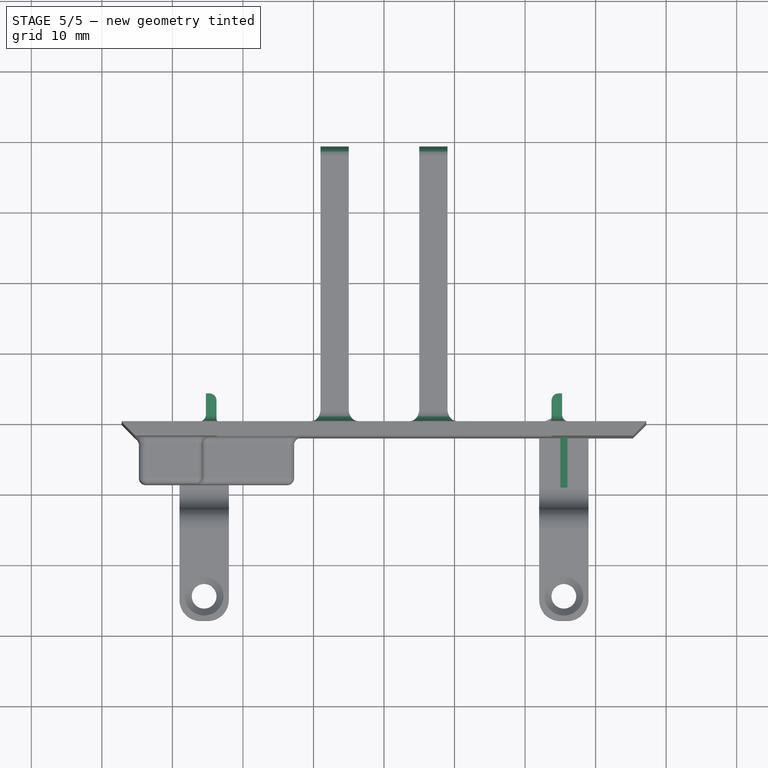
[diagram: stage 5 of 5 — top view after this stage's code; geometry added in this stage tinted green]
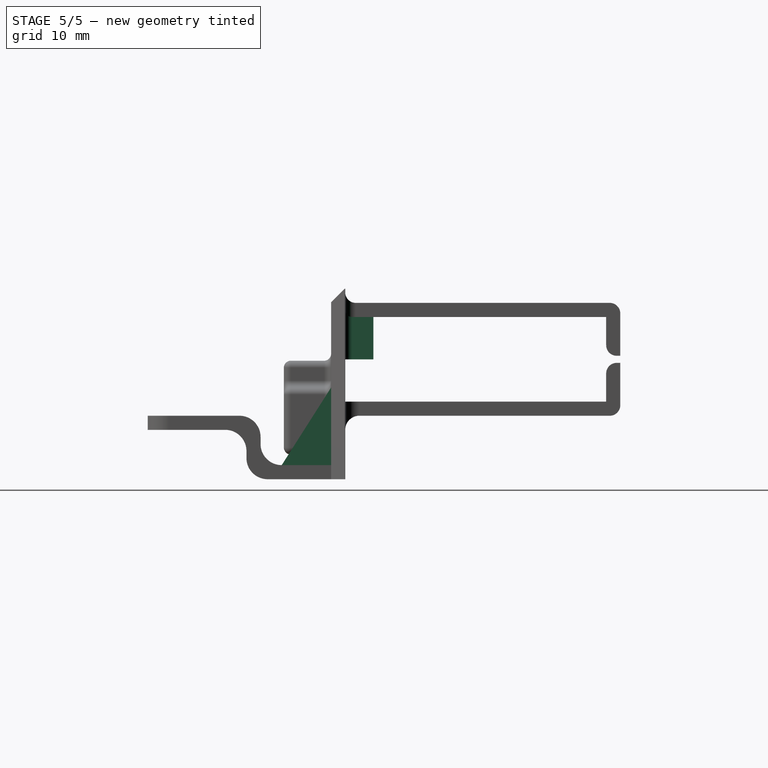
[diagram: stage 5 of 5 — right view after this stage's code; geometry added in this stage tinted green]
FEATURE [PartDesign::Fillet] Fillet004
  Base = -> Pad009 [Edge77,Edge79,Edge78,Edge81,Edge82,Edge83,Edge382,Edge391,Edge396,Edge387]
  BaseFeature = -> Pad009
  Placement = pos=(0,0,0) rot=(1,0,0;1.5708rad)
  Radius = 1.5
  SupportTransform = false
  UseAllEdges = false
FEATURE [Sketcher::SketchObject] Sketch012
  ExternalGeometry = -> [Fillet004]
  FullyConstrained = true
  MapMode = 5
  Placement = pos=(0,0,0) rot=(-1,0,0;1.5708rad)
  Support = -> [Fillet004]
  sketch-geometry (8):
    g0: LineSegment StartX=-23.75 StartY=-3.5 StartZ=0 EndX=-25.25 EndY=-3.5 EndZ=0
    g1: LineSegment StartX=-25.25 StartY=-3.5 StartZ=0 EndX=-25.25 EndY=-9.5 EndZ=0
    g2: LineSegment StartX=-25.25 StartY=-9.5 StartZ=0 EndX=-23.75 EndY=-9.5 EndZ=0
    g3: LineSegment StartX=-23.75 StartY=-9.5 StartZ=0 EndX=-23.75 EndY=-3.5 EndZ=0
    g4: LineSegment StartX=23.75 StartY=-3.5 StartZ=0 EndX=25.25 EndY=-3.5 EndZ=0
    g5: LineSegment StartX=25.25 StartY=-3.5 StartZ=0 EndX=25.25 EndY=-9.5 EndZ=0
    g6: LineSegment StartX=25.25 StartY=-9.5 StartZ=0 EndX=23.75 EndY=-9.5 EndZ=0
    g7: LineSegment StartX=23.75 StartY=-9.5 StartZ=0 EndX=23.75 EndY=-3.5 EndZ=0
  constraints (20):
    c: Coincident(g0,g1)
    c: Coincident(g1,g2)
    c: Coincident(g2,g3)
    c: Coincident(g3,g0)
    c: Horizontal(g0)
    c: Horizontal(g2)
    c: Vertical(g1)
    c: Coincident(g0,g-3)
    c: Coincident(g4,g5)
    c: Coincident(g5,g6)
    c: Coincident(g6,g7)
    c: Coincident(g7,g4)
    c: Horizontal(g4)
    c: Horizontal(g6)
    c: Vertical(g5)
    c: Coincident(g4,g-4)
    c: Coincident(g6,g-4)
    c: Coincident(g2,g-3)
    c: Equal(g0,g4)
    c: DistanceX(g0,g0) = 1.5
FEATURE [PartDesign::Pad] Pad010
  BaseFeature = -> Fillet004
  Direction = (0,1,-7e-16)
  Length = 4
  Length2 = 10
  Placement = pos=(0,0,0) rot=(1,0,0;1.5708rad)
  Profile = -> Sketch012
  ReferenceAxis = -> Sketch012 [N_Axis]
  Type = 0
FEATURE [PartDesign::Fillet] Fillet005
  Base = -> Pad010 [Edge39,Edge38,Edge33,Edge34,Edge301,Edge302]
  BaseFeature = -> Pad010
  Placement = pos=(0,0,0) rot=(1,0,0;1.5708rad)
  Radius = 1
  Refine = true
  SupportTransform = false
  UseAllEdges = false
FEATURE [Sketcher::SketchObject] Sketch013
  ExternalGeometry = -> [Fillet005]
  FullyConstrained = true
  MapMode = 5
  Placement = pos=(-29,0,0) rot=(-0.707107,0,0.707107;3.14159rad)
  Support = -> [Fillet005]
  sketch-geometry (4):
    g0: LineSegment StartX=10 StartY=7.7 StartZ=0 EndX=11.5 EndY=7.7 EndZ=0
    g1: LineSegment StartX=11.5 StartY=7.7 StartZ=0 EndX=11.5 EndY=3 EndZ=0
    g2: LineSegment StartX=11.5 StartY=3 StartZ=0 EndX=10 EndY=3 EndZ=0
    g3: LineSegment StartX=10 StartY=3 StartZ=0 EndX=10 EndY=7.7 EndZ=0
  constraints (10):
    c: Coincident(g0,g1)
    c: Coincident(g1,g2)
    c: Coincident(g2,g3)
    c: Coincident(g3,g0)
    c: Horizontal(g0)
    c: Horizontal(g2)
    c: Vertical(g1)
    c: Coincident(g0,g-3)
    c: PointOnObject(g1,g-4)
    c: Coincident(g2,g-3)
FEATURE [PartDesign::Pad] Pad011
  BaseFeature = -> Fillet005
  Direction = (-1,0,2e-16)
  Length = 4
  Length2 = -3
  Placement = pos=(0,0,0) rot=(1,0,0;1.5708rad)
  Profile = -> Sketch013
  ReferenceAxis = -> Sketch013 [N_Axis]
  Reversed = true
  Type = 4
FEATURE [Sketcher::SketchObject] Sketch014
  ExternalGeometry = -> [Pad011]
  FullyConstrained = true
  MapMode = 5
  Placement = pos=(29,1.09e-13,-7.725e-13) rot=(0.707107,0,0.707107;3.14159rad)
  Support = -> [Pad011]
  sketch-geometry (3):
    g0: LineSegment StartX=-11.5 StartY=9 StartZ=0 EndX=-0.5 EndY=2 EndZ=0
    g1: LineSegment StartX=-0.5 StartY=2 StartZ=0 EndX=-11.5 EndY=2 EndZ=0
    g2: LineSegment StartX=-11.5 StartY=2 StartZ=0 EndX=-11.5 EndY=9 EndZ=0
  constraints (7):
    c: Coincident(g-3,g0)
    c: PointOnObject(g0,g-5)
    c: Coincident(g0,g1)
    c: Coincident(g1,g-3)
    c: Coincident(g1,g2)
    c: Coincident(g2,g0)
    c: PointOnObject(g0,g-4)
FEATURE [PartDesign::Pad] Pad012
  BaseFeature = -> Pad011
  Direction = (1,3.8e-15,-2.65e-14)
  Length = 4
  Length2 = -3
  Placement = pos=(0,0,0) rot=(1,0,0;1.5708rad)
  Profile = -> Sketch014
  ReferenceAxis = -> Sketch014 [N_Axis]
  Refine = true
  Reversed = true
  Type = 4
FEATURE [PartDesign::Body] Body
  Group = -> [Sketch,Pad,Sketch001,Pocket,Sketch002,Pad001,Sketch003,Pad002,Fillet,Sketch004,Pad003,Fillet001,Sketch005,Pad004,Fillet002,Sketch006,Pad005,Sketch007,Pad006,Sketch008,Pad007,Sketch009,Pocket001,Chamfer,Fillet003,Chamfer001,Sketch010,Pad008,Sketch011,Pad009,Fillet004,Sketch012,Pad010,Fillet005,Sketch013,Pad011,Sketch014,Pad012]
  Origin = -> Origin
  Tip = -> Pad012
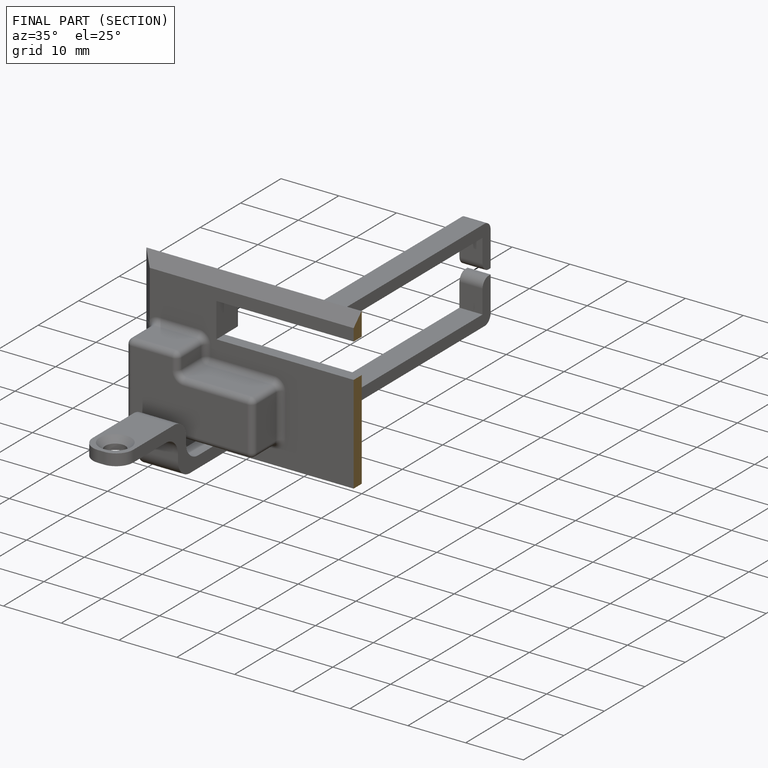
[diagram: finished part — half-section view (interior)]
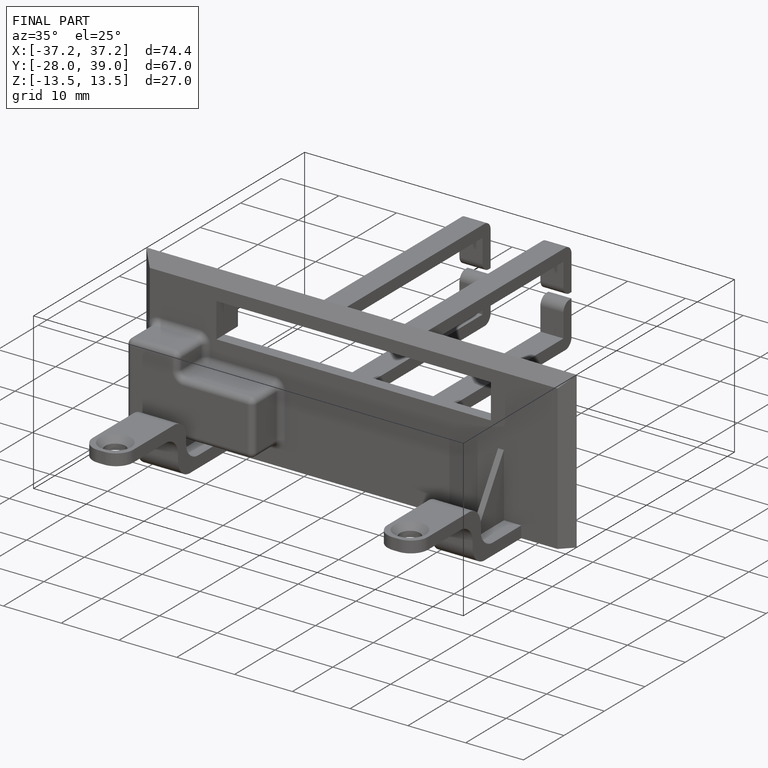
[diagram: finished part — iso view with bounding-box wireframe]
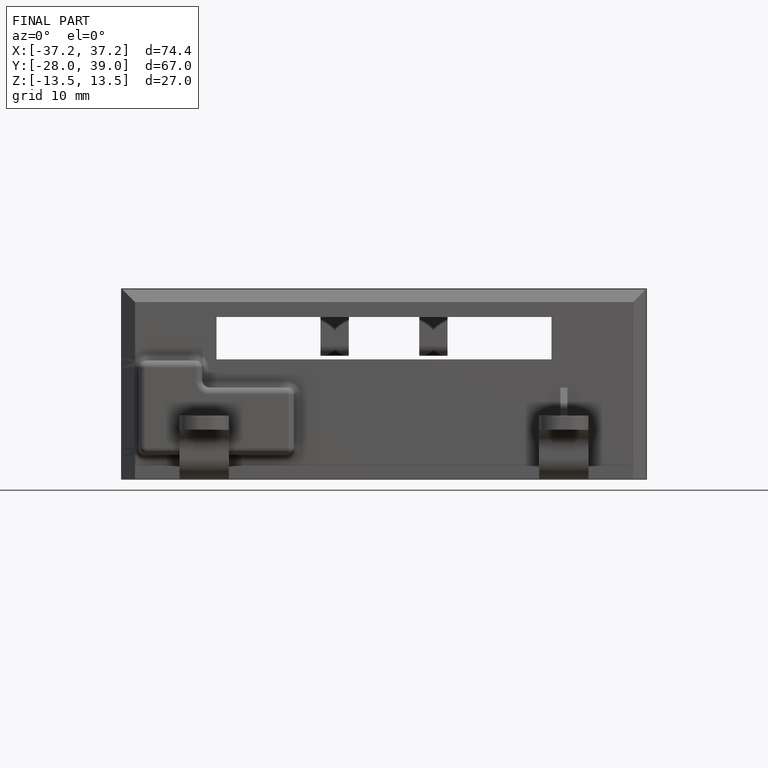
[diagram: finished part — front view with bounding-box wireframe]
